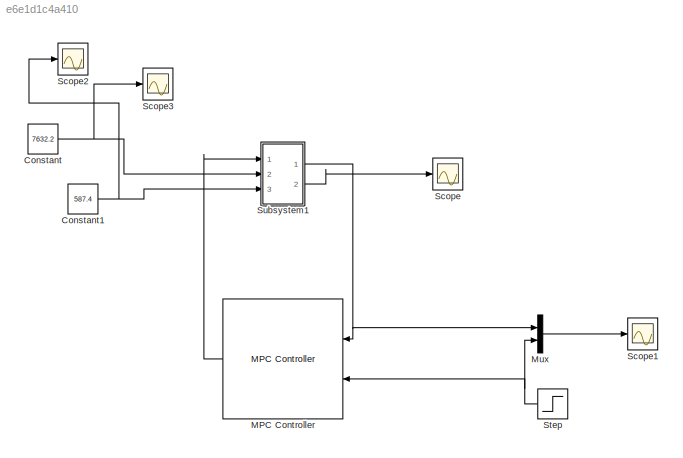
MODEL slx_e6e1d1c4a410
KIND model
CONFIG AbsTol = auto
CONFIG EnableMultiTasking = off
CONFIG FixedStep = auto
CONFIG MaxStep = auto
CONFIG MinStep = auto
CONFIG RelTol = 1e-3
CONFIG SampleTimeConstraint = Unconstrained
CONFIG SolverName = VariableStepAuto
CONFIG StartTime = 0.0
CONFIG StopTime = 2500
BLOCK [Constant] Constant
  Value = 7632.2
BLOCK [Constant] Constant1
  Value = 587.4
BLOCK [Reference] MPC Controller  REF=mpclib/MPC Controller  (lib defined in mdl_ae329e0e0455)
  Ports = [2, 1]
  SCDEnableBlockLinearizationSpecification = on
  SourceBlock = mpclib/MPC Controller
  SourceProductBaseCode = MP
  SourceType = MPC
BLOCK [Mux] Mux
  DisplayOption = bar
  Inputs = 2
  Ports = [2, 1]
BLOCK [Scope] Scope
  Floating = off
  NumInputPorts = 1
  Ports = [1]
  ScopeSpecificationString = Simulink.scopes.TimeScopeBlockCfg('CurrentConfiguration', extmgr.ConfigurationSet(extmgr.Configuration('Core','General UI',true),extmgr.Configuration('Core','Source UI',true),extmgr.Configuration('Sources','WiredSimulink',true,'DataLoggingVariableName','ScopeData1'),extmgr.Configuration('Visuals','Time Domain',true,'SerializedDisplays',{struct('MinYLimReal','6632.2','MaxYLimReal','8632.2','YLabelR...<+1392ch>
BLOCK [Scope] Scope1
  Floating = off
  NumInputPorts = 1
  Ports = [1]
  ScopeSpecificationString = Simulink.scopes.TimeScopeBlockCfg('CurrentConfiguration', extmgr.ConfigurationSet(extmgr.Configuration('Core','General UI',true,'FigureColor',[1 1 1]),extmgr.Configuration('Core','Source UI',true),extmgr.Configuration('Sources','WiredSimulink',true,'DataLoggingVariableName','ScopeData2'),extmgr.Configuration('Visuals','Time Domain',true,'SerializedDisplays',{struct('MinYLimReal','414.61893','MaxYL...<+1643ch>
BLOCK [Scope] Scope2
  Floating = off
  NumInputPorts = 1
  Ports = [1]
  ScopeSpecificationString = Simulink.scopes.TimeScopeBlockCfg('CurrentConfiguration', extmgr.ConfigurationSet(extmgr.Configuration('Core','General UI',true),extmgr.Configuration('Core','Source UI',true),extmgr.Configuration('Sources','WiredSimulink',true),extmgr.Configuration('Visuals','Time Domain',true),extmgr.Configuration('Tools','Plot Navigation',true),extmgr.Configuration('Tools','Measurements',true)),'Version','2021a'...<+1ch>
BLOCK [Scope] Scope3
  Floating = off
  NumInputPorts = 1
  Ports = [1]
  ScopeSpecificationString = Simulink.scopes.TimeScopeBlockCfg('CurrentConfiguration', extmgr.ConfigurationSet(extmgr.Configuration('Core','General UI',true),extmgr.Configuration('Core','Source UI',true),extmgr.Configuration('Sources','WiredSimulink',true,'DataLoggingVariableName','ScopeData3'),extmgr.Configuration('Visuals','Time Domain',true),extmgr.Configuration('Tools','Plot Navigation',true),extmgr.Configuration('Tools',...<+40ch>
BLOCK [Step] Step
  After = 418
  Before = 415
  NameLocation = top
  SampleTime = 0
  Time = 800
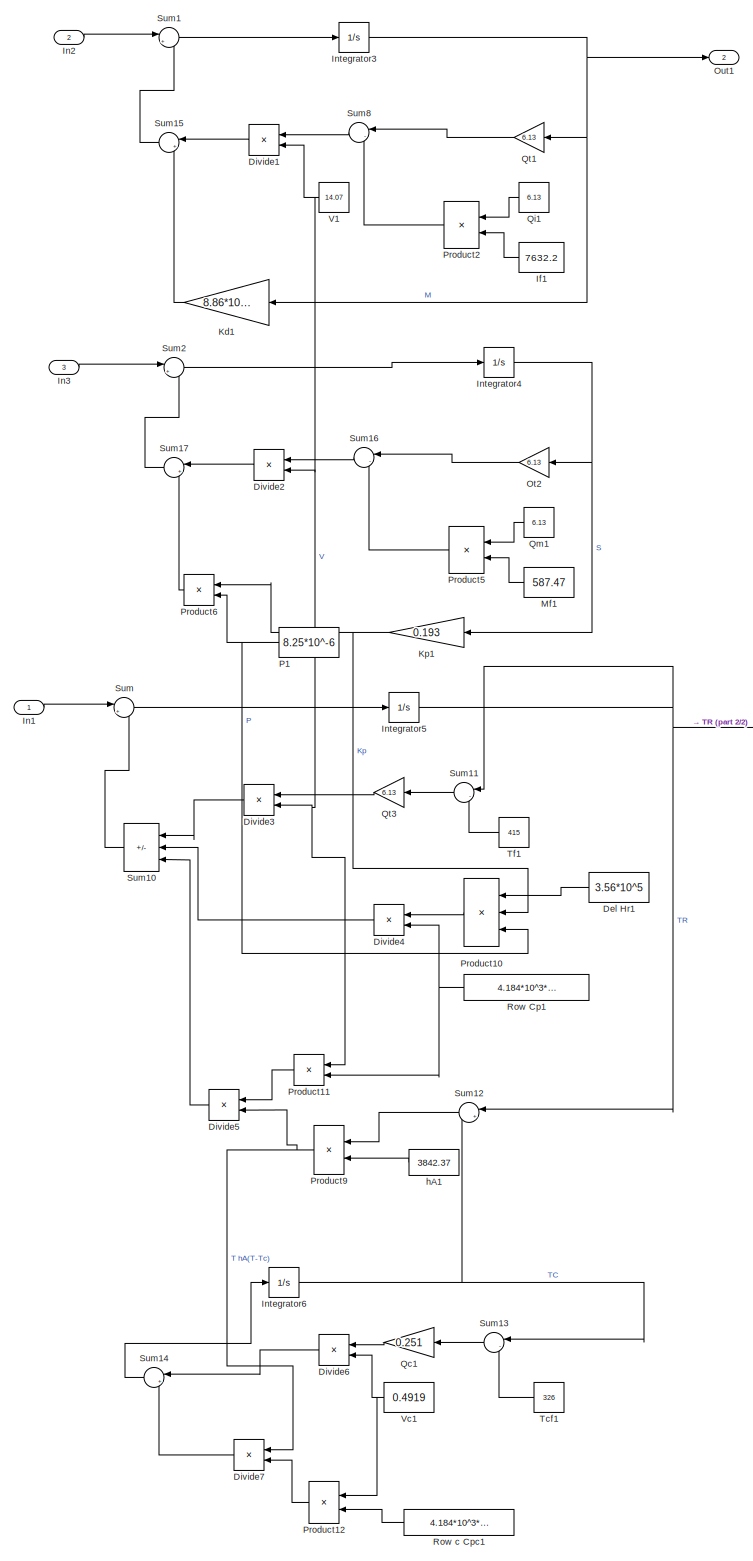
[diagram: Subsystem1 - part 1/2, center side, full height]
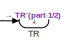
[diagram: Subsystem1 - part 2/2, middle right region]
BLOCK [SubSystem] Subsystem1
  Ports = [3, 2]
  RequestExecContextInheritance = off
BLOCK [Constant] Subsystem1/Del Hr1
  NameLocation = top
  Value = 3.56*10^5
BLOCK [Product] Subsystem1/Divide1
  Inputs = */
  NameLocation = top
  Ports = [2, 1]
BLOCK [Product] Subsystem1/Divide2
  Inputs = */
  NameLocation = top
  Ports = [2, 1]
BLOCK [Product] Subsystem1/Divide3
  Inputs = */
  NameLocation = top
  Ports = [2, 1]
BLOCK [Product] Subsystem1/Divide4
  Inputs = */
  NameLocation = top
  Ports = [2, 1]
BLOCK [Product] Subsystem1/Divide5
  Inputs = /*
  NameLocation = top
  Ports = [2, 1]
BLOCK [Product] Subsystem1/Divide6
  Inputs = */
  NameLocation = top
  Ports = [2, 1]
BLOCK [Product] Subsystem1/Divide7
  Inputs = */
  NameLocation = top
  Ports = [2, 1]
BLOCK [Constant] Subsystem1/If1
  NameLocation = top
  Value = 7632.2
BLOCK [Inport] Subsystem1/In1
BLOCK [Inport] Subsystem1/In2
  Port = 2
BLOCK [Inport] Subsystem1/In3
  Port = 3
BLOCK [Integrator] Subsystem1/Integrator3
  InitialCondition = 7632.2
  Ports = [1, 1]
BLOCK [Integrator] Subsystem1/Integrator4
  InitialCondition = 587.47
  Ports = [1, 1]
BLOCK [Integrator] Subsystem1/Integrator5
  InitialCondition = 415
  Ports = [1, 1]
BLOCK [Integrator] Subsystem1/Integrator6
  InitialCondition = 326
  Ports = [1, 1]
BLOCK [Gain] Subsystem1/Kd1
  Gain = 8.86*10^-20
  NameLocation = top
BLOCK [Gain] Subsystem1/Kp1
  Gain = 0.193
  NameLocation = top
BLOCK [Constant] Subsystem1/Mf1
  NameLocation = top
  Value = 587.47
BLOCK [Gain] Subsystem1/Ot2
  Gain = 6.13
  NameLocation = top
BLOCK [Outport] Subsystem1/Out1
  Port = 2
BLOCK [Constant] Subsystem1/P1
  NameLocation = top
  Value = 8.25*10^-6
BLOCK [Product] Subsystem1/Product10
  Inputs = 3
  NameLocation = top
  Ports = [3, 1]
BLOCK [Product] Subsystem1/Product11
  NameLocation = top
  Ports = [2, 1]
BLOCK [Product] Subsystem1/Product12
  NameLocation = top
  Ports = [2, 1]
BLOCK [Product] Subsystem1/Product2
  NameLocation = top
  Ports = [2, 1]
BLOCK [Product] Subsystem1/Product5
  NameLocation = top
  Ports = [2, 1]
BLOCK [Product] Subsystem1/Product6
  NameLocation = top
  Ports = [2, 1]
BLOCK [Product] Subsystem1/Product9
  NameLocation = top
  Ports = [2, 1]
BLOCK [Gain] Subsystem1/Qc1
  Gain = 0.251
  NameLocation = top
BLOCK [Constant] Subsystem1/Qi1
  NameLocation = top
  Value = 6.13
BLOCK [Constant] Subsystem1/Qm1
  NameLocation = top
  Value = 6.13
BLOCK [Gain] Subsystem1/Qt1
  Gain = 6.13
  NameLocation = top
BLOCK [Gain] Subsystem1/Qt3
  Gain = 6.13
  NameLocation = top
BLOCK [Constant] Subsystem1/Row Cp1
  NameLocation = top
  Value = 4.184*10^3*858.085
BLOCK [Constant] Subsystem1/Row c Cpc1
  NameLocation = top
  Value = 4.184*10^3*858.085
BLOCK [Sum] Subsystem1/Sum
  Inputs = |++
  Ports = [2, 1]
BLOCK [Sum] Subsystem1/Sum1
  Inputs = |++
  Ports = [2, 1]
BLOCK [Sum] Subsystem1/Sum10
  IconShape = rectangular
  Inputs = |++-
  NameLocation = top
  Ports = [3, 1]
BLOCK [Sum] Subsystem1/Sum11
  Inputs = |-+
  NameLocation = top
  Ports = [2, 1]
BLOCK [Sum] Subsystem1/Sum12
  Inputs = |+-
  NameLocation = top
  Ports = [2, 1]
BLOCK [Sum] Subsystem1/Sum13
  Inputs = |-+
  NameLocation = top
  Ports = [2, 1]
BLOCK [Sum] Subsystem1/Sum14
  Inputs = |++
  NameLocation = top
  Ports = [2, 1]
BLOCK [Sum] Subsystem1/Sum15
  Inputs = |+-
  NameLocation = top
  Ports = [2, 1]
BLOCK [Sum] Subsystem1/Sum16
  Inputs = |-+
  NameLocation = top
  Ports = [2, 1]
BLOCK [Sum] Subsystem1/Sum17
  Inputs = |+-
  NameLocation = top
  Ports = [2, 1]
BLOCK [Sum] Subsystem1/Sum2
  Inputs = |++
  Ports = [2, 1]
BLOCK [Sum] Subsystem1/Sum8
  Inputs = |-+
  NameLocation = top
  Ports = [2, 1]
BLOCK [Outport] Subsystem1/TR
BLOCK [Constant] Subsystem1/Tcf1
  NameLocation = top
  Value = 326
BLOCK [Constant] Subsystem1/Tf1
  NameLocation = top
  Value = 415
BLOCK [Constant] Subsystem1/V1
  NameLocation = top
  Value = 14.07
BLOCK [Constant] Subsystem1/Vc1
  NameLocation = top
  Value = 0.4919
BLOCK [Constant] Subsystem1/hA1
  NameLocation = top
  Value = 3842.37
NET Constant1:1 -> Scope2:1, Subsystem1:3
NET Constant:1 -> Scope3:1, Subsystem1:2
LINE MPC Controller:1 -> Subsystem1:1
LINE Mux:1 -> Scope1:1
NET Step:1 -> MPC Controller:2, Mux:2
LINE Subsystem1/Del Hr1:1 -> Subsystem1/Product10:1
LINE Subsystem1/Divide1:1 -> Subsystem1/Sum15:1
LINE Subsystem1/Divide2:1 -> Subsystem1/Sum17:1
LINE Subsystem1/Divide3:1 -> Subsystem1/Sum10:1
LINE Subsystem1/Divide4:1 -> Subsystem1/Sum10:2
LINE Subsystem1/Divide5:1 -> Subsystem1/Sum10:3
LINE Subsystem1/Divide6:1 -> Subsystem1/Sum14:1
LINE Subsystem1/Divide7:1 -> Subsystem1/Sum14:2
LINE Subsystem1/If1:1 -> Subsystem1/Product2:2
LINE Subsystem1/In1:1 -> Subsystem1/Sum:1
LINE Subsystem1/In2:1 -> Subsystem1/Sum1:1
LINE Subsystem1/In3:1 -> Subsystem1/Sum2:1
NET Subsystem1/Integrator3:1 -> Subsystem1/Kd1:1, Subsystem1/Out1:1, Subsystem1/Qt1:1
NET Subsystem1/Integrator4:1 -> Subsystem1/Kp1:1, Subsystem1/Ot2:1
NET Subsystem1/Integrator5:1 -> Subsystem1/Sum11:1, Subsystem1/Sum12:1, Subsystem1/TR:1
NET Subsystem1/Integrator6:1 -> Subsystem1/Sum12:2, Subsystem1/Sum13:1
LINE Subsystem1/Kd1:1 -> Subsystem1/Sum15:2
NET Subsystem1/Kp1:1 -> Subsystem1/Product10:2, Subsystem1/Product6:1
LINE Subsystem1/Mf1:1 -> Subsystem1/Product5:2
LINE Subsystem1/Ot2:1 -> Subsystem1/Sum16:1
NET Subsystem1/P1:1 -> Subsystem1/Product10:3, Subsystem1/Product6:2
LINE Subsystem1/Product10:1 -> Subsystem1/Divide4:1
LINE Subsystem1/Product11:1 -> Subsystem1/Divide5:1
LINE Subsystem1/Product12:1 -> Subsystem1/Divide7:2
LINE Subsystem1/Product2:1 -> Subsystem1/Sum8:2
LINE Subsystem1/Product5:1 -> Subsystem1/Sum16:2
LINE Subsystem1/Product6:1 -> Subsystem1/Sum17:2
NET Subsystem1/Product9:1 -> Subsystem1/Divide5:2, Subsystem1/Divide7:1
LINE Subsystem1/Qc1:1 -> Subsystem1/Divide6:1
LINE Subsystem1/Qi1:1 -> Subsystem1/Product2:1
LINE Subsystem1/Qm1:1 -> Subsystem1/Product5:1
LINE Subsystem1/Qt1:1 -> Subsystem1/Sum8:1
LINE Subsystem1/Qt3:1 -> Subsystem1/Divide3:1
NET Subsystem1/Row Cp1:1 -> Subsystem1/Divide4:2, Subsystem1/Product11:2
LINE Subsystem1/Row c Cpc1:1 -> Subsystem1/Product12:2
LINE Subsystem1/Sum10:1 -> Subsystem1/Sum:2
LINE Subsystem1/Sum11:1 -> Subsystem1/Qt3:1
LINE Subsystem1/Sum12:1 -> Subsystem1/Product9:1
LINE Subsystem1/Sum13:1 -> Subsystem1/Qc1:1
LINE Subsystem1/Sum14:1 -> Subsystem1/Integrator6:1
LINE Subsystem1/Sum15:1 -> Subsystem1/Sum1:2
LINE Subsystem1/Sum16:1 -> Subsystem1/Divide2:1
LINE Subsystem1/Sum17:1 -> Subsystem1/Sum2:2
LINE Subsystem1/Sum1:1 -> Subsystem1/Integrator3:1
LINE Subsystem1/Sum2:1 -> Subsystem1/Integrator4:1
LINE Subsystem1/Sum8:1 -> Subsystem1/Divide1:1
LINE Subsystem1/Sum:1 -> Subsystem1/Integrator5:1
LINE Subsystem1/Tcf1:1 -> Subsystem1/Sum13:2
LINE Subsystem1/Tf1:1 -> Subsystem1/Sum11:2
NET Subsystem1/V1:1 -> Subsystem1/Divide1:2, Subsystem1/Divide2:2, Subsystem1/Divide3:2, Subsystem1/Product11:1
NET Subsystem1/Vc1:1 -> Subsystem1/Divide6:2, Subsystem1/Product12:1
LINE Subsystem1/hA1:1 -> Subsystem1/Product9:2
NET Subsystem1:1 -> MPC Controller:1, Mux:1
LINE Subsystem1:2 -> Scope:1
note: NET lines group one-source signal fan-out (src -> all destinations, sorted); 1:1 wires keep LINE
